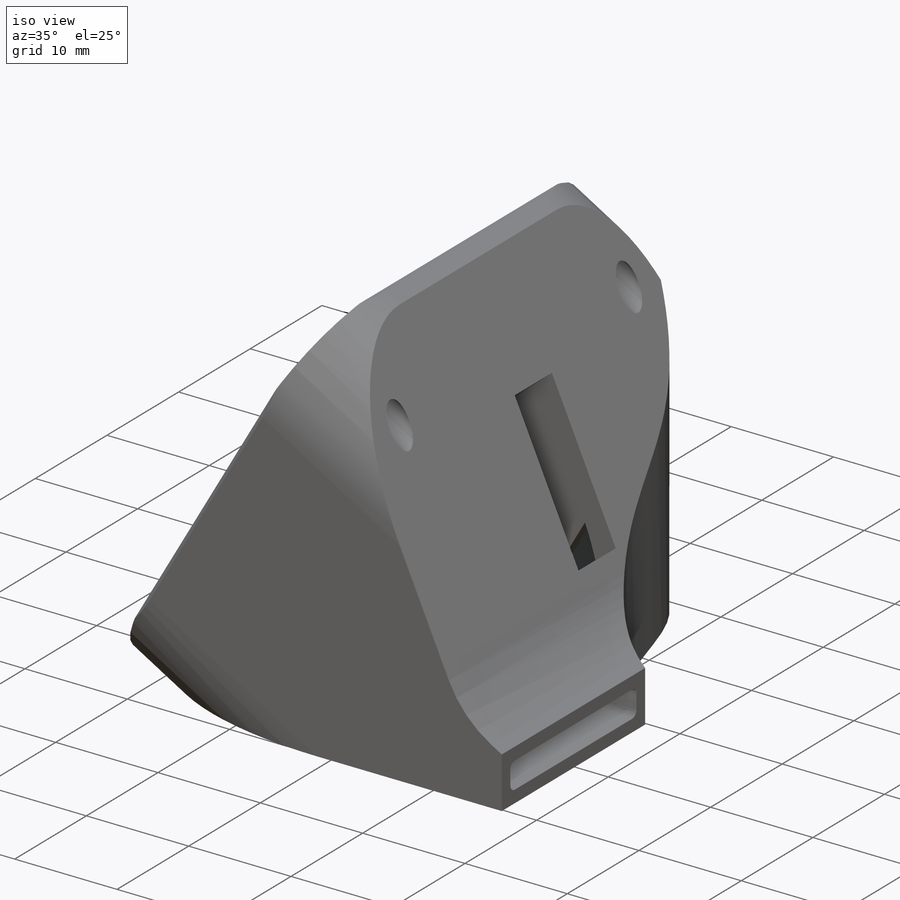
[diagram: iso view]
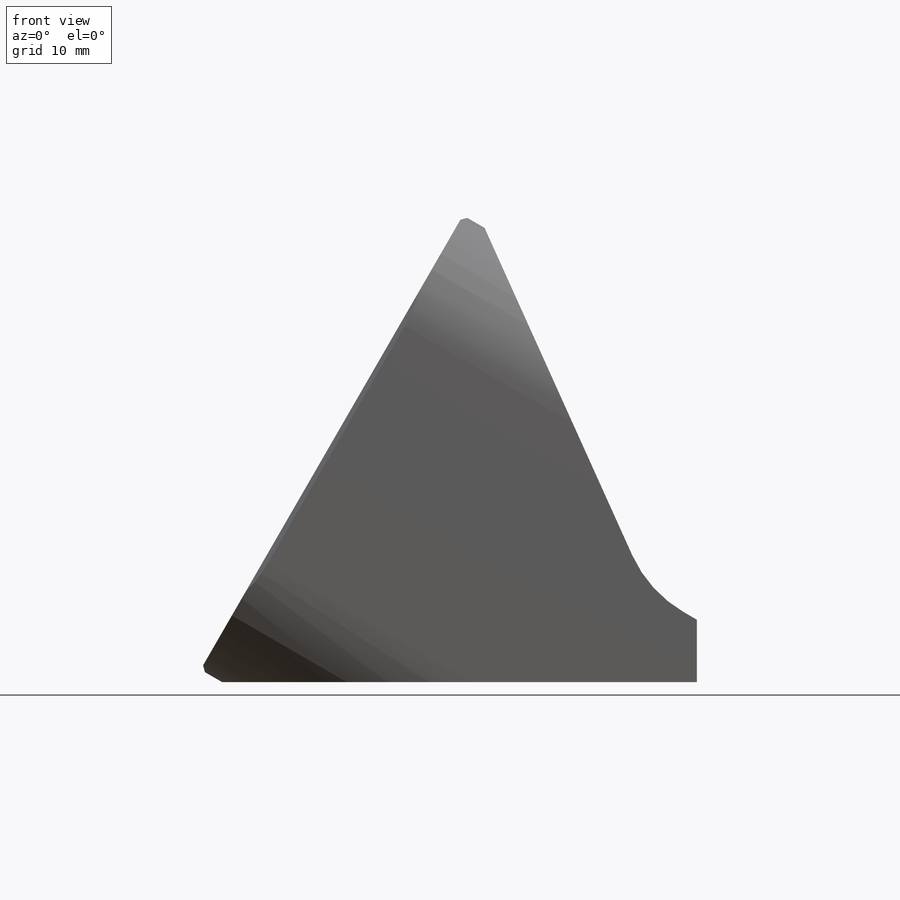
[diagram: front view]
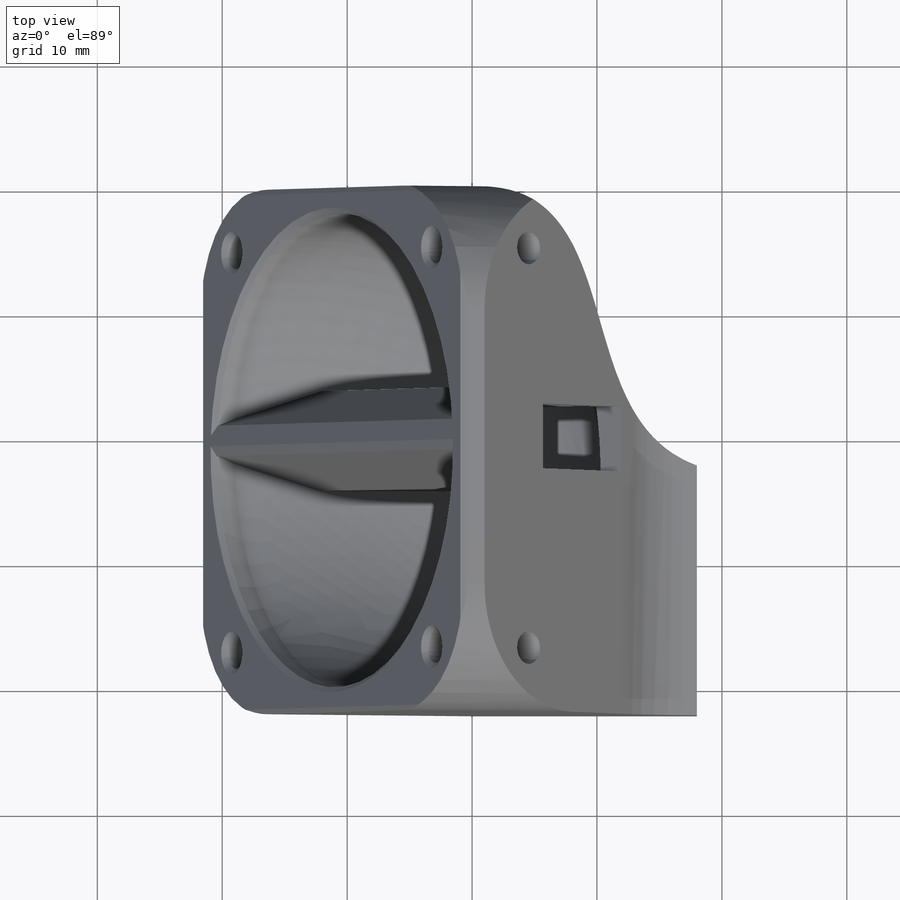
[diagram: top view]
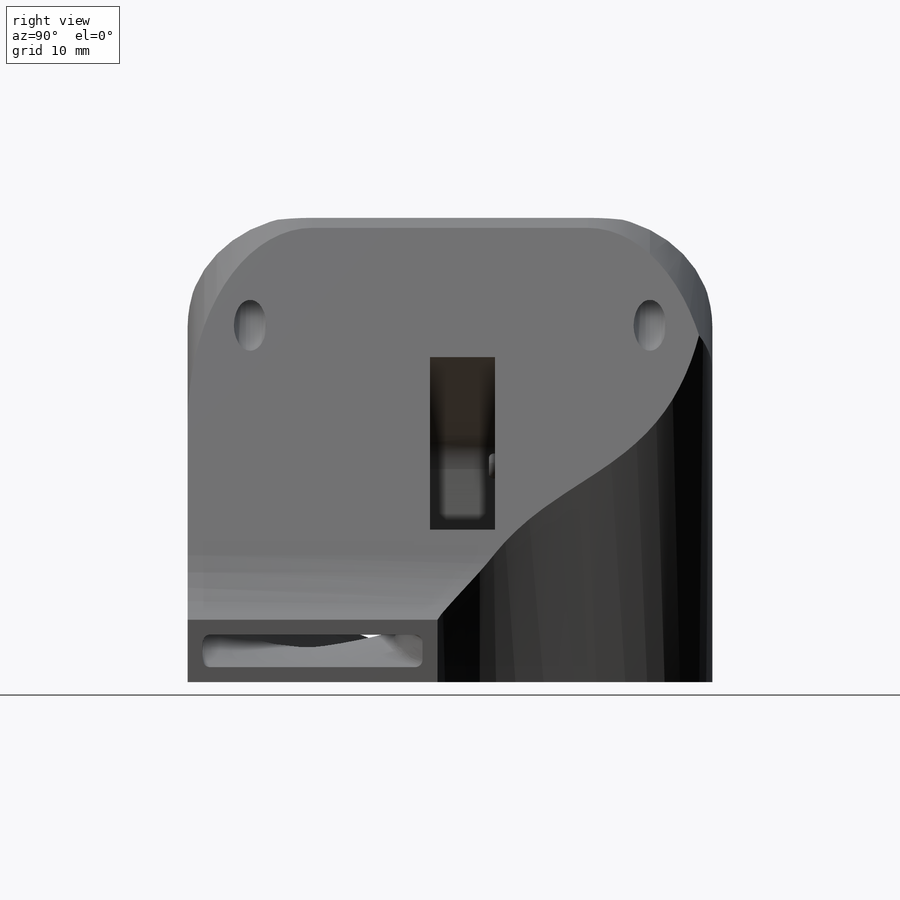
[diagram: right view]
SOLIDWORKS PART (.sldprt)
format: sldprt  version: not decoded by parser v0  size: 637,440 bytes
history: native  units: mm
features: sketch x13, cut_extrude x4, plane x4, extrude x3, fillet x3, chamfer x3, material x1 (+13 scaffold rows collapsed)
feature tree (44):
  scaffold x13  (default folders/planes/origin — collapsed)
  material  "Material <not specified>"
  sketch  "Sketch1"  dims[c1.D1=42.0mm c1.D2=2.0mm c1.D3=38.0mm c1.D4=5.0mm c1.D5=38.0mm c2.D5=60.0deg]
  extrude  "Boss-Extrude1"  Depth=42mm
  sketch  "Sketch2"  dims[D1=20.0mm]
  cut_extrude  "Cut-Extrude1"  Depth=2mm
  sketch  "Sketch9"  dims[D1=20.0mm]
  cut_extrude  "Cut-Extrude4"  [1 undecoded]
  fillet  "Fillet1"  Radius=10mm
  sketch  "Sketch11"
  sketch  "Sketch12"
  plane  "Plane2"
  sketch  "Sketch3"  dims[D3=0.6mm D1=1.2mm D2=1.2mm]
  plane  "Plane1"
  sketch  "Sketch4"  dims[D1=10.0mm]
  plane  "Plane3"
  plane  "Plane4"
  sketch  "Sketch13"
  sketch  "Sketch14"
  sketch  "Sketch5"  dims[D1=2.6mm D2=32.0mm]
  cut_extrude  "Cut-Extrude2"  [1 undecoded]
  sketch  "Sketch6"
  extrude  "Boss-Extrude2"  Depth=8mm
  sketch  "Sketch7"  dims[c1.D1=3.15mm c1.D2=3.15mm c1.D3=~6.097234mm c2.D3=125.45deg c2.D4=14.6mm c2.D5=4.0mm c2.D6=~6.385244mm c3.D6=90.0deg c4.D6=~6.385244mm c5.D6=40.0deg c5.D7=17.0mm]
  cut_extrude  "Cut-Extrude3"  Depth=5.2mm
  sketch  "Sketch8"  dims[D1=2.0mm]
  extrude  "Boss-Extrude3"  Depth=0.5mm
  fillet  "Fillet2"  Radius=0.4mm
  chamfer  "Chamfer3"  Distance=8mm Angle=20deg
  chamfer  "Chamfer4"  Distance=8mm Angle=20deg
  chamfer  "Chamfer2"  Distance=0.4mm Angle=45deg
  fillet  "Fillet3"  Radius=10mm
decode coverage: 19 of 26 modeling features carry decoded parameters
note: ~ marks probable driven/reference dimensions
note: 2 parameter values undecoded
note: suppression state not decoded; provenance and decode notes live in map.json
